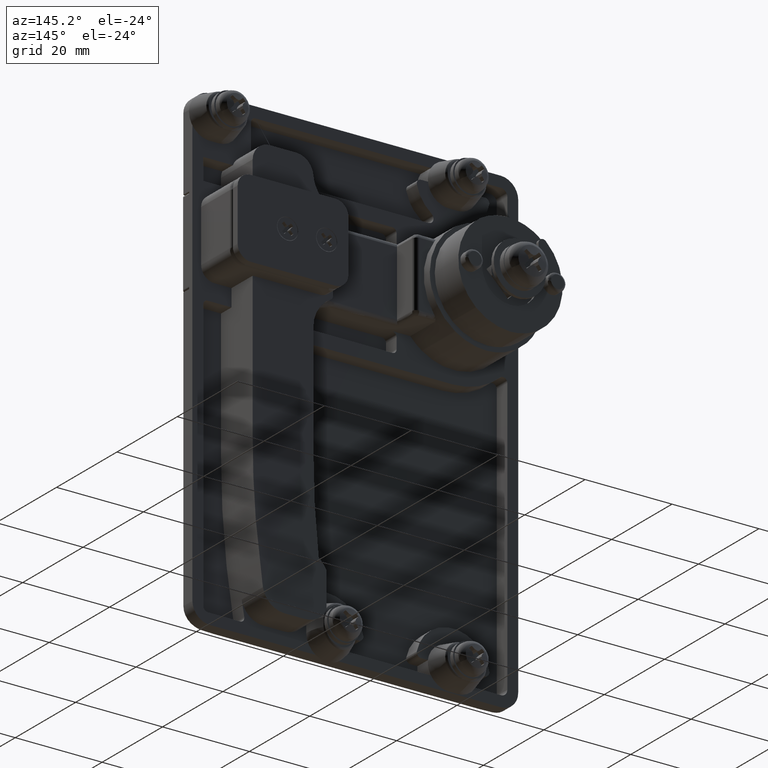
[diagram: clean part render]
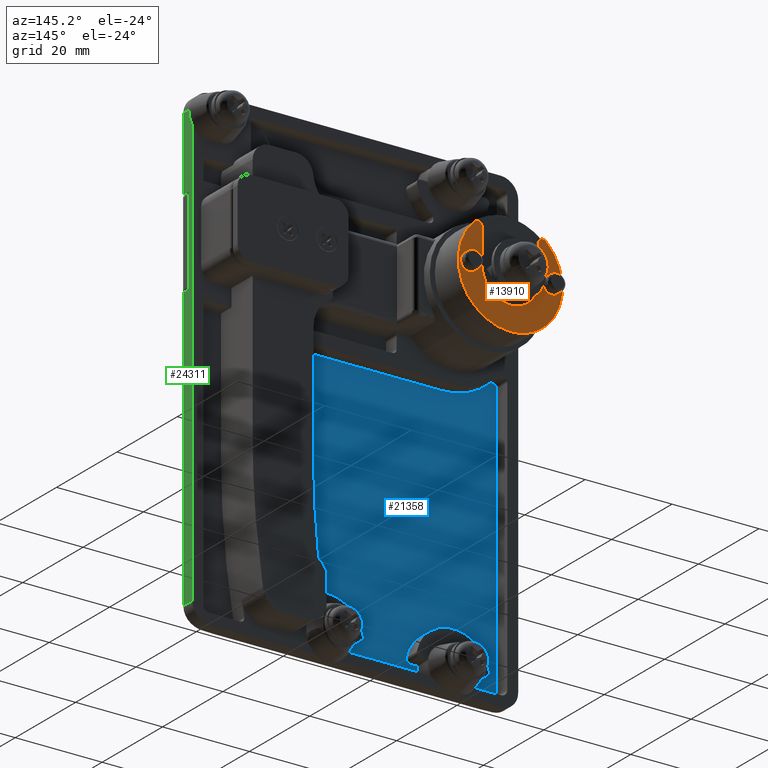
[diagram: same view with three faces highlighted in distinct colors, each labeled with its STEP entity id]
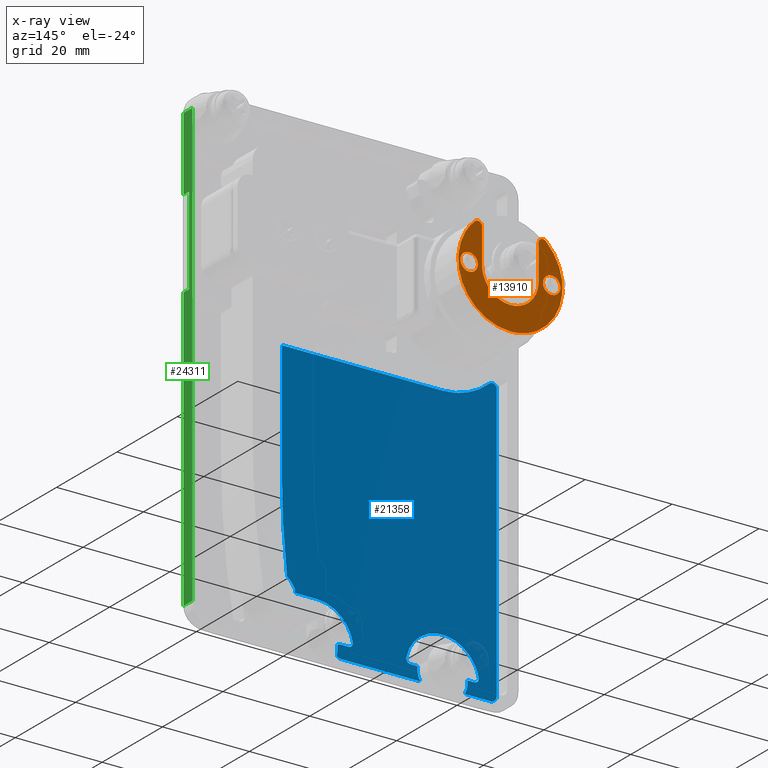
[diagram: x-ray of the same camera — body ghosted, the three highlighted faces saturated]
A machine part, auxiliary view with three faces highlighted in distinct colors.
The next image is the same camera in x-ray (body ghosted, the three faces saturated) — at least one of them is partly hidden behind the body in this view.
Their STEP definitions:

[orange] entity #13910 — the highlighted face is a freeform B-spline surface patch.
#12635=CARTESIAN_POINT('',(-10.818493579817989,-2.299999999999975,1.504339051015659));
#12636=VERTEX_POINT('',#12635);
#12637=CARTESIAN_POINT('',(-9.500554312781048,-2.299999999999970,2.0));
#12638=VERTEX_POINT('',#12637);
#12639=CARTESIAN_POINT('',(-10.818493579817989,-2.299999999999975,1.504339051015659));
#12640=CARTESIAN_POINT('',(-10.705765631374749,-2.299999999999973,1.603119157111389));
#12641=CARTESIAN_POINT('',(-10.433214148122930,-2.299999999999975,1.792433267581236));
#12642=CARTESIAN_POINT('',(-9.980189733858952,-2.299999999999972,1.962793381405086));
#12643=CARTESIAN_POINT('',(-9.650439410296194,-2.299999999999974,2.000019518660093));
#12644=CARTESIAN_POINT('',(-9.500554312781048,-2.299999999999970,2.0));
#12645=B_SPLINE_CURVE_WITH_KNOTS('',3,(#12639,#12640,#12641,#12642,#12643,#12644),.UNSPECIFIED.,.F.,.U.,(4,1,1,4),(0.000000056707181,0.449666796880399,0.989259729145574,1.438926469322637),.UNSPECIFIED.);
#12646=EDGE_CURVE('',#12636,#12638,#12645,.T.);
#12648=CARTESIAN_POINT('',(-7.500554312781053,-2.299999999999970,0.000000108937633));
#12649=VERTEX_POINT('',#12648);
#12650=CARTESIAN_POINT('',(-9.500554312781048,-2.299999999999970,2.0));
#12651=CARTESIAN_POINT('',(-9.255079323343674,-2.299999999999971,2.000222774157447));
#12652=CARTESIAN_POINT('',(-8.862558518375469,-2.299999999999971,1.926751729976570));
#12653=CARTESIAN_POINT('',(-8.380354650621021,-2.299999999999970,1.676514248519362));
#12654=CARTESIAN_POINT('',(-7.977174140410611,-2.299999999999969,1.337433117211962));
#12655=CARTESIAN_POINT('',(-7.608098377822787,-2.299999999999968,0.785175367080149));
#12656=CARTESIAN_POINT('',(-7.500211816818548,-2.299999999999970,0.278222425886379));
#12657=CARTESIAN_POINT('',(-7.500554312781053,-2.299999999999970,0.000000108937633));
#12658=B_SPLINE_CURVE_WITH_KNOTS('',3,(#12650,#12651,#12652,#12653,#12654,#12655,#12656,#12657),.UNSPECIFIED.,.F.,.U.,(4,1,1,1,1,4),(0.000000245896357,0.736327341935878,1.178132810275699,1.619889750789105,2.307162932575892,3.141671427290748),.UNSPECIFIED.);
#12659=EDGE_CURVE('',#12638,#12649,#12658,.T.);
#12661=CARTESIAN_POINT('',(-9.500554312781048,-2.299999999999970,-2.0));
#12662=VERTEX_POINT('',#12661);
#12663=CARTESIAN_POINT('',(-7.500554312781053,-2.299999999999970,0.000000108937633));
#12664=CARTESIAN_POINT('',(-7.500461850807058,-2.299999999999973,-0.196361105419364));
#12665=CARTESIAN_POINT('',(-7.549159642581868,-2.299999999999964,-0.523550965381519));
#12666=CARTESIAN_POINT('',(-7.731627358558628,-2.299999999999980,-0.964079420630833));
#12667=CARTESIAN_POINT('',(-7.955158103686912,-2.299999999999961,-1.289858571808496));
#12668=CARTESIAN_POINT('',(-8.272510821431444,-2.299999999999977,-1.599560458224136));
#12669=CARTESIAN_POINT('',(-8.764493318971612,-2.299999999999969,-1.902784737663015));
#12670=CARTESIAN_POINT('',(-9.222324465775891,-2.299999999999970,-2.000379172577453));
#12671=CARTESIAN_POINT('',(-9.500554312781048,-2.299999999999970,-2.0));
#12672=B_SPLINE_CURVE_WITH_KNOTS('',3,(#12663,#12664,#12665,#12666,#12667,#12668,#12669,#12670,#12671),.UNSPECIFIED.,.F.,.U.,(4,1,1,1,1,1,4),(0.000000245747300,0.589061720640697,0.981774423053799,1.423604630822817,1.767182731217914,2.307163022823409,3.141671550091920),.UNSPECIFIED.);
#12673=EDGE_CURVE('',#12649,#12662,#12672,.T.);
#12675=CARTESIAN_POINT('',(-10.927055108712970,-2.299999999999925,-1.401818671628610));
#12676=VERTEX_POINT('',#12675);
#12677=CARTESIAN_POINT('',(-9.500554312781048,-2.299999999999970,-2.0));
#12678=CARTESIAN_POINT('',(-9.781856032722562,-2.299999999999955,-2.000364826439899));
#12679=CARTESIAN_POINT('',(-10.310935458817051,-2.299999999999952,-1.886350095132684));
#12680=CARTESIAN_POINT('',(-10.753231855562740,-2.299999999999927,-1.578981344381065));
#12681=CARTESIAN_POINT('',(-10.927055108712970,-2.299999999999925,-1.401818671628610));
#12682=B_SPLINE_CURVE_WITH_KNOTS('',3,(#12677,#12678,#12679,#12680,#12681),.UNSPECIFIED.,.F.,.U.,(4,1,4),(0.000000071229806,0.843761089691676,1.588290201858233),.UNSPECIFIED.);
#12683=EDGE_CURVE('',#12662,#12676,#12682,.T.);
#12765=CARTESIAN_POINT('',(-11.500554312781050,-2.299999999999970,-0.000000108937643));
#12766=VERTEX_POINT('',#12765);
#12767=CARTESIAN_POINT('',(-11.500554312781050,-2.299999999999970,-0.000000108937643));
#12768=CARTESIAN_POINT('',(-11.500875983503841,-2.299999999999972,0.266117712118206));
#12769=CARTESIAN_POINT('',(-11.425098419838299,-2.299999999999972,0.638320335792178));
#12770=CARTESIAN_POINT('',(-11.162674530957981,-2.299999999999974,1.143651669996411));
#12771=CARTESIAN_POINT('',(-10.965303984675220,-2.299999999999975,1.375826229152342));
#12772=CARTESIAN_POINT('',(-10.818493579817989,-2.299999999999975,1.504339051015659));
#12773=B_SPLINE_CURVE_WITH_KNOTS('',3,(#12767,#12768,#12769,#12770,#12771,#12772),.UNSPECIFIED.,.F.,.U.,(4,1,1,4),(0.000000074612804,0.798177951670343,1.117425066221151,1.702746773010688),.UNSPECIFIED.);
#12774=EDGE_CURVE('',#12766,#12636,#12773,.T.);
#12797=CARTESIAN_POINT('',(-10.927055108712970,-2.299999999999925,-1.401818671628610));
#12798=CARTESIAN_POINT('',(-11.097327948772000,-2.299999999999934,-1.228813727616976));
#12799=CARTESIAN_POINT('',(-11.391903232784051,-2.299999999999944,-0.792586083703507));
#12800=CARTESIAN_POINT('',(-11.500906724522251,-2.299999999999958,-0.275118524503665));
#12801=CARTESIAN_POINT('',(-11.500554312781050,-2.299999999999970,-0.000000108937643));
#12802=B_SPLINE_CURVE_WITH_KNOTS('',3,(#12797,#12798,#12799,#12800,#12801),.UNSPECIFIED.,.F.,.U.,(4,1,4),(0.000000063773837,0.728164441117788,1.553381227700941),.UNSPECIFIED.);
#12803=EDGE_CURVE('',#12676,#12766,#12802,.T.);
#12830=CARTESIAN_POINT('',(8.181506420181956,-2.299999999999975,1.504339051015659));
#12831=VERTEX_POINT('',#12830);
#12832=CARTESIAN_POINT('',(9.499445687218900,-2.299999999999970,2.0));
#12833=VERTEX_POINT('',#12832);
#12834=CARTESIAN_POINT('',(8.181506420181956,-2.299999999999975,1.504339051015659));
#12835=CARTESIAN_POINT('',(8.328028460418029,-2.299999999999977,1.632780158176963));
#12836=CARTESIAN_POINT('',(8.735347447008751,-2.299999999999971,1.895709710850088));
#12837=CARTESIAN_POINT('',(9.214585989180828,-2.299999999999974,2.000396273106774));
#12838=CARTESIAN_POINT('',(9.499445687218900,-2.299999999999970,2.0));
#12839=B_SPLINE_CURVE_WITH_KNOTS('',3,(#12834,#12835,#12836,#12837,#12838),.UNSPECIFIED.,.F.,.U.,(4,1,4),(0.000000056706912,0.584567442942794,1.438926469322636),.UNSPECIFIED.);
#12840=EDGE_CURVE('',#12831,#12833,#12839,.T.);
#12842=CARTESIAN_POINT('',(11.499445687218900,-2.299999999999970,0.000000108937633));
#12843=VERTEX_POINT('',#12842);
#12844=CARTESIAN_POINT('',(9.499445687218900,-2.299999999999970,2.0));
#12845=CARTESIAN_POINT('',(9.695804270499160,-2.299999999999970,2.000090301670780));
#12846=CARTESIAN_POINT('',(10.023001093478490,-2.299999999999974,1.951398617661059));
#12847=CARTESIAN_POINT('',(10.493913802772870,-2.299999999999966,1.756357113853935));
#12848=CARTESIAN_POINT('',(10.868628724169410,-2.299999999999979,1.485547637025070));
#12849=CARTESIAN_POINT('',(11.154744867063840,-2.299999999999960,1.145386489678926));
#12850=CARTESIAN_POINT('',(11.416160271093050,-2.299999999999992,0.670626643697038));
#12851=CARTESIAN_POINT('',(11.499826213853609,-2.299999999999955,0.278242617393621));
#12852=CARTESIAN_POINT('',(11.499445687218900,-2.299999999999970,0.000000108937633));
#12853=B_SPLINE_CURVE_WITH_KNOTS('',3,(#12844,#12845,#12846,#12847,#12848,#12849,#12850,#12851,#12852),.UNSPECIFIED.,.F.,.U.,(4,1,1,1,1,1,4),(0.000000245895770,0.589061697714498,0.981774384746942,1.521781922535961,1.963538862765289,2.307162932575626,3.141671427290766),.UNSPECIFIED.);
#12854=EDGE_CURVE('',#12833,#12843,#12853,.T.);
#12856=CARTESIAN_POINT('',(9.499445687218900,-2.299999999999970,-2.0));
#12857=VERTEX_POINT('',#12856);
#12858=CARTESIAN_POINT('',(11.499445687218900,-2.299999999999970,0.000000108937633));
#12859=CARTESIAN_POINT('',(11.499675154519370,-2.299999999999972,-0.245479406622854));
#12860=CARTESIAN_POINT('',(11.426173714283131,-2.299999999999969,-0.637977670328339));
#12861=CARTESIAN_POINT('',(11.153267121526101,-2.299999999999973,-1.164097003250268));
#12862=CARTESIAN_POINT('',(10.831137278485430,-2.299999999999969,-1.519488228396833));
#12863=CARTESIAN_POINT('',(10.448314267806870,-2.299999999999974,-1.775208894262419));
#12864=CARTESIAN_POINT('',(10.023000165855519,-2.299999999999963,-1.951397606887421));
#12865=CARTESIAN_POINT('',(9.695805835838110,-2.299999999999975,-2.000091883376056));
#12866=CARTESIAN_POINT('',(9.499445687218900,-2.299999999999970,-2.0));
#12867=B_SPLINE_CURVE_WITH_KNOTS('',3,(#12858,#12859,#12860,#12861,#12862,#12863,#12864,#12865,#12866),.UNSPECIFIED.,.F.,.U.,(4,1,1,1,1,1,4),(0.000000245746148,0.736327370593048,1.178132856314925,1.767182731217486,2.159897372855219,2.552610075249607,3.141671550091922),.UNSPECIFIED.);
#12868=EDGE_CURVE('',#12843,#12857,#12867,.T.);
#12870=CARTESIAN_POINT('',(8.072944891286973,-2.299999999999925,-1.401818671628610));
#12871=VERTEX_POINT('',#12870);
#12872=CARTESIAN_POINT('',(9.499445687218900,-2.299999999999970,-2.0));
#12873=CARTESIAN_POINT('',(9.350545487855477,-2.299999999999968,-2.000023045483837));
#12874=CARTESIAN_POINT('',(9.036211937440530,-2.299999999999951,-1.964755260548353));
#12875=CARTESIAN_POINT('',(8.534579156143629,-2.299999999999942,-1.783133476859993));
#12876=CARTESIAN_POINT('',(8.223613839295821,-2.299999999999931,-1.555323065144908));
#12877=CARTESIAN_POINT('',(8.072944891286973,-2.299999999999925,-1.401818671628610));
#12878=B_SPLINE_CURVE_WITH_KNOTS('',3,(#12872,#12873,#12874,#12875,#12876,#12877),.UNSPECIFIED.,.F.,.U.,(4,1,1,4),(0.000000071229771,0.446708695173141,0.943034862235030,1.588290201858235),.UNSPECIFIED.);
#12879=EDGE_CURVE('',#12857,#12871,#12878,.T.);
#12961=CARTESIAN_POINT('',(7.499445687218904,-2.299999999999970,-0.000000108937643));
#12962=VERTEX_POINT('',#12961);
#12963=CARTESIAN_POINT('',(7.499445687218904,-2.299999999999970,-0.000000108937643));
#12964=CARTESIAN_POINT('',(7.499355399383262,-2.299999999999971,0.195112455679666));
#12965=CARTESIAN_POINT('',(7.549171973722453,-2.299999999999973,0.532042031831941));
#12966=CARTESIAN_POINT('',(7.770935523483621,-2.299999999999975,1.058002227077761));
#12967=CARTESIAN_POINT('',(8.007936695103535,-2.299999999999974,1.352506139830613));
#12968=CARTESIAN_POINT('',(8.181506420181956,-2.299999999999975,1.504339051015659));
#12969=B_SPLINE_CURVE_WITH_KNOTS('',3,(#12963,#12964,#12965,#12966,#12967,#12968),.UNSPECIFIED.,.F.,.U.,(4,1,1,4),(0.000000074612646,0.585321781405578,1.010988398203320,1.702746773010685),.UNSPECIFIED.);
#12970=EDGE_CURVE('',#12962,#12831,#12969,.T.);
#12993=CARTESIAN_POINT('',(8.072944891286973,-2.299999999999925,-1.401818671628610));
#12994=CARTESIAN_POINT('',(7.925420262028051,-2.299999999999928,-1.251854276855429));
#12995=CARTESIAN_POINT('',(7.706962874848906,-2.299999999999946,-0.944845744103216));
#12996=CARTESIAN_POINT('',(7.533162235266818,-2.299999999999946,-0.453047920461247));
#12997=CARTESIAN_POINT('',(7.499422124219243,-2.299999999999974,-0.145629439118842));
#12998=CARTESIAN_POINT('',(7.499445687218904,-2.299999999999970,-0.000000108937643));
#12999=B_SPLINE_CURVE_WITH_KNOTS('',3,(#12993,#12994,#12995,#12996,#12997,#12998),.UNSPECIFIED.,.F.,.U.,(4,1,1,4),(0.000000063774001,0.631072818897652,1.116490883003876,1.553381227700936),.UNSPECIFIED.);
#13000=EDGE_CURVE('',#12871,#12962,#12999,.T.);
#13031=CARTESIAN_POINT('',(-8.182372494599230,-2.299999999999970,8.778260148780651));
#13032=VERTEX_POINT('',#13031);
#13033=CARTESIAN_POINT('',(-3.452306312151571,-2.299999999995614,-11.492841604009080));
#13034=VERTEX_POINT('',#13033);
#13035=CARTESIAN_POINT('',(-8.182372494599230,-2.299999999999970,8.778260148780651));
#13036=CARTESIAN_POINT('',(-8.734374686832465,-2.299999999999649,8.263857157980731));
#13037=CARTESIAN_POINT('',(-9.806576169053676,-2.299999999998982,7.056570827146280));
#13038=CARTESIAN_POINT('',(-10.915113589630639,-2.299999999998086,5.144128662990858));
#13039=CARTESIAN_POINT('',(-11.548877578939480,-2.299999999997384,3.379411123542893));
#13040=CARTESIAN_POINT('',(-11.896640827698761,-2.299999999996833,1.807645470992848));
#13041=CARTESIAN_POINT('',(-12.027634695545760,-2.299999999996380,0.366188398004263));
#13042=CARTESIAN_POINT('',(-11.971232844490910,-2.299999999995947,-1.176865110960971));
#13043=CARTESIAN_POINT('',(-11.681339163211680,-2.299999999995540,-3.028304494297332));
#13044=CARTESIAN_POINT('',(-11.017427736616140,-2.299999999995174,-4.930077299886186));
#13045=CARTESIAN_POINT('',(-9.938104405052691,-2.299999999994950,-6.813167056022328));
#13046=CARTESIAN_POINT('',(-8.681093458969524,-2.299999999994978,-8.379811254394866));
#13047=CARTESIAN_POINT('',(-7.261744096964121,-2.299999999994947,-9.609990432436387));
#13048=CARTESIAN_POINT('',(-5.515352675052854,-2.299999999995217,-10.720798885392201));
#13049=CARTESIAN_POINT('',(-4.300697335974726,-2.299999999995419,-11.238218584615559));
#13050=CARTESIAN_POINT('',(-3.452306312151571,-2.299999999995614,-11.492841604009080));
#13051=B_SPLINE_CURVE_WITH_KNOTS('',3,(#13035,#13036,#13037,#13038,#13039,#13040,#13041,#13042,#13043,#13044,#13045,#13046,#13047,#13048,#13049,#13050),.UNSPECIFIED.,.F.,.U.,(4,1,1,1,1,1,1,1,1,1,1,1,1,4),(0.000000171161886,2.263597957470179,4.822484282328883,6.594011483436379,7.873453409182410,9.644977351006386,10.924422077678409,12.499150756889231,15.254795452074870,16.927883737072261,18.994685930451858,21.258303226900470,22.537739016038110,25.195022932087031),.UNSPECIFIED.);
#13052=EDGE_CURVE('',#13032,#13034,#13051,.T.);
#13121=CARTESIAN_POINT('',(7.953099886735921,-2.300000000005551,-8.985509717011333));
#13122=VERTEX_POINT('',#13121);
#13128=CARTESIAN_POINT('',(8.181263869037140,-2.299999999999970,8.778260148780531));
#13129=VERTEX_POINT('',#13128);
#13130=CARTESIAN_POINT('',(7.953099886735921,-2.300000000005551,-8.985509717011333));
#13131=CARTESIAN_POINT('',(8.772425402625258,-2.300000000005597,-8.260762284307406));
#13132=CARTESIAN_POINT('',(9.867977256964142,-2.300000000005581,-6.984022810560378));
#13133=CARTESIAN_POINT('',(10.921587206427800,-2.300000000005301,-5.060340108148520));
#13134=CARTESIAN_POINT('',(11.535545776596919,-2.300000000005020,-3.450946913925202));
#13135=CARTESIAN_POINT('',(11.982722290892781,-2.300000000004519,-1.463004278815676));
#13136=CARTESIAN_POINT('',(12.059105875293691,-2.300000000003800,0.894064206041468));
#13137=CARTESIAN_POINT('',(11.593385722277331,-2.300000000002846,3.417607549523477));
#13138=CARTESIAN_POINT('',(10.735443471918920,-2.300000000001897,5.499719460356800));
#13139=CARTESIAN_POINT('',(9.586059189043557,-2.300000000000925,7.306120675731304));
#13140=CARTESIAN_POINT('',(8.714755908793194,-2.300000000000305,8.281119745026345));
#13141=CARTESIAN_POINT('',(8.181263869037140,-2.299999999999970,8.778260148780531));
#13142=B_SPLINE_CURVE_WITH_KNOTS('',3,(#13130,#13131,#13132,#13133,#13134,#13135,#13136,#13137,#13138,#13139,#13140,#13141),.UNSPECIFIED.,.F.,.U.,(4,1,1,1,1,1,1,1,1,4),(0.000000027702001,3.281496783120730,5.000404288319800,6.563048950943195,8.438199520878053,11.094633604881990,13.594833297830270,16.095052791861029,17.813949554785999,20.001614615737029),.UNSPECIFIED.);
#13143=EDGE_CURVE('',#13122,#13129,#13142,.T.);
#13189=CARTESIAN_POINT('',(-0.000554315519913,-2.299999999999970,-12.0));
#13190=VERTEX_POINT('',#13189);
#13191=CARTESIAN_POINT('',(-3.452306312151571,-2.299999999995614,-11.492841604009080));
#13192=CARTESIAN_POINT('',(-2.334613130736421,-2.299999999997024,-11.828868381740760));
#13193=CARTESIAN_POINT('',(-1.167659968776507,-2.299999999998495,-12.000270196682360));
#13194=CARTESIAN_POINT('',(-0.000554315519913,-2.299999999999970,-12.0));
#13195=B_SPLINE_CURVE_WITH_KNOTS('',3,(#13191,#13192,#13193,#13194),.UNSPECIFIED.,.F.,.U.,(4,4),(3.758748E-009,3.501228719493706),.UNSPECIFIED.);
#13196=EDGE_CURVE('',#13034,#13190,#13195,.T.);
#13198=CARTESIAN_POINT('',(-0.000554315519913,-2.299999999999970,-12.0));
#13199=CARTESIAN_POINT('',(0.859873085411351,-2.300000000000570,-12.000151617138380));
#13200=CARTESIAN_POINT('',(2.263635939987682,-2.300000000001570,-11.848329020488860));
#13201=CARTESIAN_POINT('',(4.137723898362982,-2.300000000002863,-11.303237621841800));
#13202=CARTESIAN_POINT('',(6.003688334437421,-2.300000000004197,-10.472500122438490));
#13203=CARTESIAN_POINT('',(7.241146988387990,-2.300000000005039,-9.616020267760552));
#13204=CARTESIAN_POINT('',(7.953099886735921,-2.300000000005551,-8.985509717011333));
#13205=B_SPLINE_CURVE_WITH_KNOTS('',3,(#13198,#13199,#13200,#13201,#13202,#13203,#13204),.UNSPECIFIED.,.F.,.U.,(4,1,1,1,4),(0.000000019247254,2.581252070261000,4.211527657495351,5.841773656478701,8.694742040718042),.UNSPECIFIED.);
#13206=EDGE_CURVE('',#13190,#13122,#13205,.T.);
#13672=CARTESIAN_POINT('',(-6.500554312781050,-2.299999999999970,0.0));
#13673=VERTEX_POINT('',#13672);
#13674=CARTESIAN_POINT('',(-6.500554312781050,-2.299999999999970,8.046738469715589));
#13675=VERTEX_POINT('',#13674);
#13676=CARTESIAN_POINT('',(-6.500554312781050,-2.299999999999970,0.0));
#13677=CARTESIAN_POINT('',(-6.500554312781050,-2.299999999999970,8.046738469715589));
#13678=QUASI_UNIFORM_CURVE('',1,(#13676,#13677),.UNSPECIFIED.,.F.,.U.);
#13679=EDGE_CURVE('',#13673,#13675,#13678,.T.);
#13713=CARTESIAN_POINT('',(-6.500554312781050,-2.299999999999970,8.046738469715589));
#13714=CARTESIAN_POINT('',(-6.500515254835688,-2.299999999999968,8.143440230134990));
#13715=CARTESIAN_POINT('',(-6.528830303106350,-2.299999999999973,8.336838693452680));
#13716=CARTESIAN_POINT('',(-6.657522695300934,-2.299999999999967,8.613823011611377));
#13717=CARTESIAN_POINT('',(-6.864841932103936,-2.299999999999970,8.839262395396109));
#13718=CARTESIAN_POINT('',(-7.140628325822386,-2.299999999999970,8.996821332097854));
#13719=CARTESIAN_POINT('',(-7.476058275561044,-2.299999999999974,9.068742763421913));
#13720=CARTESIAN_POINT('',(-7.853908382595691,-2.299999999999977,9.010844578284887));
#13721=CARTESIAN_POINT('',(-8.085176353361767,-2.299999999999961,8.869035834081625));
#13722=CARTESIAN_POINT('',(-8.182372494599230,-2.299999999999970,8.778260148780651));
#13723=B_SPLINE_CURVE_WITH_KNOTS('',3,(#13713,#13714,#13715,#13716,#13717,#13718,#13719,#13720,#13721,#13722),.UNSPECIFIED.,.F.,.U.,(4,1,1,1,1,1,1,4),(0.000000531997220,0.290111975571525,0.580293425339313,0.906719667815711,1.196820697361817,1.523246273155662,1.922222144017489,2.321168704823736),.UNSPECIFIED.);
#13724=EDGE_CURVE('',#13675,#13032,#13723,.T.);
#13750=CARTESIAN_POINT('',(6.499445687218951,-2.299999999999970,8.046738469715489));
#13751=VERTEX_POINT('',#13750);
#13752=CARTESIAN_POINT('',(8.181263869037140,-2.299999999999970,8.778260148780531));
#13753=CARTESIAN_POINT('',(8.110552959179552,-2.299999999999969,8.844220235970132));
#13754=CARTESIAN_POINT('',(7.949767135974104,-2.299999999999972,8.955385113743748));
#13755=CARTESIAN_POINT('',(7.705863459408075,-2.299999999999971,9.034881694631622));
#13756=CARTESIAN_POINT('',(7.451705950226907,-2.299999999999972,9.055084590848564));
#13757=CARTESIAN_POINT('',(7.222457475056736,-2.299999999999972,9.018925937917661));
#13758=CARTESIAN_POINT('',(6.988297027421461,-2.299999999999967,8.917046565919439));
#13759=CARTESIAN_POINT('',(6.774188395708972,-2.299999999999980,8.755705605526986));
#13760=CARTESIAN_POINT('',(6.563485766979525,-2.299999999999966,8.469621053632084));
#13761=CARTESIAN_POINT('',(6.499151050001482,-2.299999999999972,8.203942650650125));
#13762=CARTESIAN_POINT('',(6.499445687218951,-2.299999999999970,8.046738469715489));
#13763=B_SPLINE_CURVE_WITH_KNOTS('',3,(#13752,#13753,#13754,#13755,#13756,#13757,#13758,#13759,#13760,#13761,#13762),.UNSPECIFIED.,.F.,.U.,(4,1,1,1,1,1,1,1,4),(0.000000531995493,0.290111975570033,0.580293425338014,0.761649140280370,1.051834371002226,1.269332286610016,1.523246273155071,1.849695722787061,2.321168704823772),.UNSPECIFIED.);
#13764=EDGE_CURVE('',#13129,#13751,#13763,.T.);
#13781=CARTESIAN_POINT('',(6.499445687218951,-2.299999999999970,0.0));
#13782=VERTEX_POINT('',#13781);
#13783=CARTESIAN_POINT('',(6.499445687218951,-2.299999999999970,8.046738469715489));
#13784=CARTESIAN_POINT('',(6.499445687218951,-2.299999999999970,0.0));
#13785=QUASI_UNIFORM_CURVE('',1,(#13783,#13784),.UNSPECIFIED.,.F.,.U.);
#13786=EDGE_CURVE('',#13751,#13782,#13785,.T.);
#13816=CARTESIAN_POINT('',(-0.000552546845625,-2.299999999999970,-6.499999999999760));
#13817=VERTEX_POINT('',#13816);
#13818=CARTESIAN_POINT('',(-0.000552546845625,-2.299999999999970,-6.499999999999760));
#13819=CARTESIAN_POINT('',(0.478051980786232,-2.299999999999970,-6.500077132030734));
#13820=CARTESIAN_POINT('',(1.382042106704216,-2.299999999999967,-6.399709434915311));
#13821=CARTESIAN_POINT('',(2.549010187548998,-2.299999999999976,-6.014173099054511));
#13822=CARTESIAN_POINT('',(3.654156151862590,-2.299999999999973,-5.423524966111273));
#13823=CARTESIAN_POINT('',(4.652441840373969,-2.299999999999960,-4.614489238363571));
#13824=CARTESIAN_POINT('',(5.431485463259618,-2.299999999999971,-3.628656299457155));
#13825=CARTESIAN_POINT('',(5.952426068606850,-2.299999999999976,-2.668173776959556));
#13826=CARTESIAN_POINT('',(6.372922335855729,-2.299999999999951,-1.515474881983430));
#13827=CARTESIAN_POINT('',(6.499663540733670,-2.300000000000002,-0.584978277332524));
#13828=CARTESIAN_POINT('',(6.499445687218951,-2.299999999999970,0.0));
#13829=B_SPLINE_CURVE_WITH_KNOTS('',3,(#13818,#13819,#13820,#13821,#13822,#13823,#13824,#13825,#13826,#13827,#13828),.UNSPECIFIED.,.F.,.U.,(4,1,1,1,1,1,1,1,4),(0.000000124237854,1.435803106723689,2.712097655289293,3.669321362744333,5.184845707082793,6.540921854046347,7.418373974952452,8.455371627719744,10.210239193378371),.UNSPECIFIED.);
#13830=EDGE_CURVE('',#13817,#13782,#13829,.T.);
#13832=CARTESIAN_POINT('',(-6.500554312781050,-2.299999999999970,0.0));
#13833=CARTESIAN_POINT('',(-6.500630058772515,-2.299999999999974,-0.452010737989854));
#13834=CARTESIAN_POINT('',(-6.419770151287472,-2.299999999999967,-1.223055234264244));
#13835=CARTESIAN_POINT('',(-6.070825388824697,-2.299999999999974,-2.426587040312546));
#13836=CARTESIAN_POINT('',(-5.541606663922623,-2.299999999999966,-3.477974575798667));
#13837=CARTESIAN_POINT('',(-4.769868972106746,-2.299999999999983,-4.466774804733396));
#13838=CARTESIAN_POINT('',(-3.974105211302940,-2.299999999999933,-5.179159803495567));
#13839=CARTESIAN_POINT('',(-3.054581135171665,-2.300000000000039,-5.769344004962882));
#13840=CARTESIAN_POINT('',(-1.781819671973014,-2.299999999999894,-6.324426207465282));
#13841=CARTESIAN_POINT('',(-0.691910873326675,-2.300000000000016,-6.500350518427197));
#13842=CARTESIAN_POINT('',(-0.000552546845625,-2.299999999999970,-6.499999999999760));
#13843=B_SPLINE_CURVE_WITH_KNOTS('',3,(#13832,#13833,#13834,#13835,#13836,#13837,#13838,#13839,#13840,#13841,#13842),.UNSPECIFIED.,.F.,.U.,(4,1,1,1,1,1,1,1,4),(0.000000123626245,1.356022812699930,2.313253495158014,3.749099630739317,4.865830724864165,6.062313876568250,6.939759919801547,8.136295777749144,10.210241184011650),.UNSPECIFIED.);
#13844=EDGE_CURVE('',#13673,#13817,#13843,.T.);
#13877=CARTESIAN_POINT('',(-13.196959514852940,-2.300000000000000,10.097758961368760));
#13878=CARTESIAN_POINT('',(13.197029185740270,-2.300000000000000,10.097758961368760));
#13879=CARTESIAN_POINT('',(-13.196959514852940,-2.300000000000000,-13.051272548221100));
#13880=CARTESIAN_POINT('',(13.197029185740270,-2.300000000000000,-13.051272548221100));
#13881=B_SPLINE_SURFACE_WITH_KNOTS('',1,1,((#13877,#13879),(#13878,#13880)),.UNSPECIFIED.,.F.,.F.,.U.,(2,2),(2,2),(0.0,26.393988700593209),(0.0,23.149031509589861),.UNSPECIFIED.);
#13882=ORIENTED_EDGE('',*,*,#13786,.F.);
#13883=ORIENTED_EDGE('',*,*,#13764,.F.);
#13884=ORIENTED_EDGE('',*,*,#13143,.F.);
#13885=ORIENTED_EDGE('',*,*,#13206,.F.);
#13886=ORIENTED_EDGE('',*,*,#13196,.F.);
#13887=ORIENTED_EDGE('',*,*,#13052,.F.);
#13888=ORIENTED_EDGE('',*,*,#13724,.F.);
#13889=ORIENTED_EDGE('',*,*,#13679,.F.);
#13890=ORIENTED_EDGE('',*,*,#13844,.T.);
#13891=ORIENTED_EDGE('',*,*,#13830,.T.);
#13892=EDGE_LOOP('',(#13882,#13883,#13884,#13885,#13886,#13887,#13888,#13889,#13890,#13891));
#13893=FACE_OUTER_BOUND('',#13892,.T.);
#13894=ORIENTED_EDGE('',*,*,#12854,.F.);
#13895=ORIENTED_EDGE('',*,*,#12840,.F.);
#13896=ORIENTED_EDGE('',*,*,#12970,.F.);
#13897=ORIENTED_EDGE('',*,*,#13000,.F.);
#13898=ORIENTED_EDGE('',*,*,#12879,.F.);
#13899=ORIENTED_EDGE('',*,*,#12868,.F.);
#13900=EDGE_LOOP('',(#13894,#13895,#13896,#13897,#13898,#13899));
#13901=FACE_BOUND('',#13900,.T.);
#13902=ORIENTED_EDGE('',*,*,#12659,.F.);
#13903=ORIENTED_EDGE('',*,*,#12646,.F.);
#13904=ORIENTED_EDGE('',*,*,#12774,.F.);
#13905=ORIENTED_EDGE('',*,*,#12803,.F.);
#13906=ORIENTED_EDGE('',*,*,#12683,.F.);
#13907=ORIENTED_EDGE('',*,*,#12673,.F.);
#13908=EDGE_LOOP('',(#13902,#13903,#13904,#13905,#13906,#13907));
#13909=FACE_BOUND('',#13908,.T.);
#13910=ADVANCED_FACE('',(#13893,#13901,#13909),#13881,.T.);

[blue] entity #21358 — the highlighted face is a freeform B-spline surface patch.
#19096=CARTESIAN_POINT('',(36.999445687218902,-24.800000000000001,-42.038580006373003));
#19097=VERTEX_POINT('',#19096);
#19103=CARTESIAN_POINT('',(36.999445687218902,-24.800000000000001,-16.0));
#19104=VERTEX_POINT('',#19103);
#19105=CARTESIAN_POINT('',(36.999445687218902,-24.800000000000001,-42.038580006373003));
#19106=CARTESIAN_POINT('',(36.999445687218902,-24.800000000000001,-16.0));
#19107=QUASI_UNIFORM_CURVE('',1,(#19105,#19106),.UNSPECIFIED.,.F.,.U.);
#19108=EDGE_CURVE('',#19097,#19104,#19107,.T.);
#20788=CARTESIAN_POINT('',(5.137637107195291,-24.800000000000001,-77.432252407570800));
#20789=VERTEX_POINT('',#20788);
#20795=CARTESIAN_POINT('',(5.499445687218900,-24.800000000000001,-77.500000000000000));
#20796=VERTEX_POINT('',#20795);
#20797=CARTESIAN_POINT('',(5.137637107195291,-24.800000000000001,-77.432252407570800));
#20798=CARTESIAN_POINT('',(5.252665681920970,-24.800000000000018,-77.476985077350818));
#20799=CARTESIAN_POINT('',(5.376038915440175,-24.799999999999990,-77.500044343185635));
#20800=CARTESIAN_POINT('',(5.499445687218900,-24.800000000000001,-77.500000000000000));
#20801=B_SPLINE_CURVE_WITH_KNOTS('',3,(#20797,#20798,#20799,#20800),.UNSPECIFIED.,.F.,.U.,(4,4),(0.000000026527895,0.370240174139206),.UNSPECIFIED.);
#20802=EDGE_CURVE('',#20789,#20796,#20801,.T.);
#20827=CARTESIAN_POINT('',(23.499445687218898,-24.800000000000001,-77.500000000000000));
#20828=VERTEX_POINT('',#20827);
#20829=CARTESIAN_POINT('',(5.499445687218900,-24.800000000000001,-77.500000000000000));
#20830=CARTESIAN_POINT('',(23.499445687218898,-24.800000000000001,-77.500000000000000));
#20831=QUASI_UNIFORM_CURVE('',1,(#20829,#20830),.UNSPECIFIED.,.F.,.U.);
#20832=EDGE_CURVE('',#20796,#20828,#20831,.T.);
#20864=CARTESIAN_POINT('',(24.320401321907251,-24.800000000000001,-77.070991984071185));
#20865=VERTEX_POINT('',#20864);
#20866=CARTESIAN_POINT('',(23.499445687218898,-24.800000000000001,-77.500000000000000));
#20867=CARTESIAN_POINT('',(23.649978714158639,-24.800000000000011,-77.500253162480107));
#20868=CARTESIAN_POINT('',(23.970746151211902,-24.799999999999940,-77.426063577226358));
#20869=CARTESIAN_POINT('',(24.223314739454491,-24.800000000000072,-77.211308631517241));
#20870=CARTESIAN_POINT('',(24.320401321907251,-24.800000000000001,-77.070991984071185));
#20871=B_SPLINE_CURVE_WITH_KNOTS('',3,(#20866,#20867,#20868,#20869,#20870),.UNSPECIFIED.,.F.,.U.,(4,1,4),(0.000000121056216,0.451483969353213,0.963118985102632),.UNSPECIFIED.);
#20872=EDGE_CURVE('',#20828,#20865,#20871,.T.);
#20917=CARTESIAN_POINT('',(-8.528554312781131,-24.800000000000001,-13.537843846048739));
#20918=VERTEX_POINT('',#20917);
#20924=CARTESIAN_POINT('',(-10.824039937530340,-24.800000000000001,-11.783562583646820));
#20925=VERTEX_POINT('',#20924);
#20926=CARTESIAN_POINT('',(-10.824039937530340,-24.800000000000001,-11.783562583646820));
#20927=CARTESIAN_POINT('',(-10.113871863805150,-24.799999999999979,-12.435958286277140));
#20928=CARTESIAN_POINT('',(-9.344524166804764,-24.800000000000029,-13.023890674233590));
#20929=CARTESIAN_POINT('',(-8.528554312781131,-24.800000000000001,-13.537843846048739));
#20930=B_SPLINE_CURVE_WITH_KNOTS('',3,(#20926,#20927,#20928,#20929),.UNSPECIFIED.,.F.,.U.,(4,4),(8.612937E-010,2.893030026464387),.UNSPECIFIED.);
#20931=EDGE_CURVE('',#20925,#20918,#20930,.T.);
#20957=CARTESIAN_POINT('',(-5.500554312781050,-24.800000000000001,-77.500000000000000));
#20958=VERTEX_POINT('',#20957);
#20964=CARTESIAN_POINT('',(-5.138745732757440,-24.800000000000001,-77.432252407570800));
#20965=VERTEX_POINT('',#20964);
#20966=CARTESIAN_POINT('',(-5.500554312781050,-24.800000000000001,-77.500000000000000));
#20967=CARTESIAN_POINT('',(-5.377148725149526,-24.800000000000018,-77.500044568118696));
#20968=CARTESIAN_POINT('',(-5.253773466906327,-24.800000000000001,-77.476984899487789));
#20969=CARTESIAN_POINT('',(-5.138745732757440,-24.800000000000001,-77.432252407570800));
#20970=B_SPLINE_CURVE_WITH_KNOTS('',3,(#20966,#20967,#20968,#20969),.UNSPECIFIED.,.F.,.U.,(4,4),(0.000000026527973,0.370240174139207),.UNSPECIFIED.);
#20971=EDGE_CURVE('',#20958,#20965,#20970,.T.);
#21002=CARTESIAN_POINT('',(-11.000554312781100,-24.800000000000001,-77.500000000000000));
#21003=VERTEX_POINT('',#21002);
#21009=CARTESIAN_POINT('',(-5.500554312781050,-24.800000000000001,-77.500000000000000));
#21010=CARTESIAN_POINT('',(-11.000554312781100,-24.800000000000001,-77.500000000000000));
#21011=QUASI_UNIFORM_CURVE('',1,(#21009,#21010),.UNSPECIFIED.,.F.,.U.);
#21012=EDGE_CURVE('',#20958,#21003,#21011,.T.);
#21034=CARTESIAN_POINT('',(-12.500554312781100,-24.800000000000001,-76.0));
#21035=VERTEX_POINT('',#21034);
#21041=CARTESIAN_POINT('',(-12.500554312781100,-24.800000000000001,-76.0));
#21042=CARTESIAN_POINT('',(-12.500582108261520,-24.800000000000001,-76.147251745536323));
#21043=CARTESIAN_POINT('',(-12.451486471376100,-24.800000000000001,-76.478644509908719));
#21044=CARTESIAN_POINT('',(-12.250324781841069,-24.800000000000029,-76.866349575641877));
#21045=CARTESIAN_POINT('',(-11.961108840699049,-24.799999999999990,-77.169927579384165));
#21046=CARTESIAN_POINT('',(-11.577094247148651,-24.800000000000029,-77.419932621736379));
#21047=CARTESIAN_POINT('',(-11.221507417122121,-24.800000000000100,-77.500312639073229));
#21048=CARTESIAN_POINT('',(-11.000554312781100,-24.800000000000001,-77.500000000000000));
#21049=B_SPLINE_CURVE_WITH_KNOTS('',3,(#21041,#21042,#21043,#21044,#21045,#21046,#21047,#21048),.UNSPECIFIED.,.F.,.U.,(4,1,1,1,1,4),(0.000000285949743,0.441792662942542,0.994075690967927,1.288575063719437,1.693553622323980,2.356253616557877),.UNSPECIFIED.);
#21050=EDGE_CURVE('',#21035,#21003,#21049,.T.);
#21079=CARTESIAN_POINT('',(-12.500554312781100,-24.800000000000001,-12.520000000000000));
#21080=VERTEX_POINT('',#21079);
#21086=CARTESIAN_POINT('',(-12.500554312781100,-24.800000000000001,-76.0));
#21087=CARTESIAN_POINT('',(-12.500554312781100,-24.800000000000001,-12.520000000000000));
#21088=QUASI_UNIFORM_CURVE('',1,(#21086,#21087),.UNSPECIFIED.,.F.,.U.);
#21089=EDGE_CURVE('',#21035,#21080,#21088,.T.);
#21114=CARTESIAN_POINT('',(-10.824039937530340,-24.800000000000001,-11.783562583646820));
#21115=CARTESIAN_POINT('',(-10.930427842062020,-24.800000000000001,-11.685576665259910));
#21116=CARTESIAN_POINT('',(-11.143936929028531,-24.800000000000001,-11.561984287296280));
#21117=CARTESIAN_POINT('',(-11.444278225441639,-24.799999999999990,-11.512201780751990));
#21118=CARTESIAN_POINT('',(-11.697753067940621,-24.799999999999979,-11.530082100682179));
#21119=CARTESIAN_POINT('',(-11.964890018635540,-24.800000000000040,-11.614236844654350));
#21120=CARTESIAN_POINT('',(-12.251835919372860,-24.800000000000061,-11.823675526016180));
#21121=CARTESIAN_POINT('',(-12.454299748745600,-24.799999999999851,-12.146461645883210));
#21122=CARTESIAN_POINT('',(-12.500621461323810,-24.800000000000139,-12.399492936607780));
#21123=CARTESIAN_POINT('',(-12.500554312781100,-24.800000000000001,-12.520000000000000));
#21124=B_SPLINE_CURVE_WITH_KNOTS('',3,(#21114,#21115,#21116,#21117,#21118,#21119,#21120,#21121,#21122,#21123),.UNSPECIFIED.,.F.,.U.,(4,1,1,1,1,1,1,4),(0.000000524521339,0.433837177114203,0.723092827681240,0.903871219310542,1.193064324031050,1.554636292420292,1.952359595506531,2.313883112475165),.UNSPECIFIED.);
#21125=EDGE_CURVE('',#20925,#21080,#21124,.T.);
#21145=CARTESIAN_POINT('',(-14.973097078566180,-24.800000000000001,-8.224740996554930));
#21146=CARTESIAN_POINT('',(39.472347372803320,-24.800000000000001,-8.224740996554930));
#21147=CARTESIAN_POINT('',(-14.973097078566180,-24.800000000000001,-80.795681620483890));
#21148=CARTESIAN_POINT('',(39.472347372803320,-24.800000000000001,-80.795681620483890));
#21149=B_SPLINE_SURFACE_WITH_KNOTS('',1,1,((#21145,#21147),(#21146,#21148)),.UNSPECIFIED.,.F.,.F.,.U.,(2,2),(2,2),(0.0,54.445444451369497),(0.0,72.570940623928962),.UNSPECIFIED.);
#21150=CARTESIAN_POINT('',(-0.000554312781105,-24.800000000000001,-16.0));
#21151=VERTEX_POINT('',#21150);
#21152=CARTESIAN_POINT('',(-8.528554312781131,-24.800000000000001,-13.537843846048739));
#21153=CARTESIAN_POINT('',(-7.577360141404240,-24.799999999999990,-14.137233180670350));
#21154=CARTESIAN_POINT('',(-5.590224743575293,-24.800000000000072,-15.113459136735051));
#21155=CARTESIAN_POINT('',(-2.670746540166864,-24.799999999999841,-15.859932940975790));
#21156=CARTESIAN_POINT('',(-0.796919776842110,-24.800000000000200,-16.000021390921930));
#21157=CARTESIAN_POINT('',(-0.000554312781105,-24.800000000000001,-16.0));
#21158=B_SPLINE_CURVE_WITH_KNOTS('',3,(#21152,#21153,#21154,#21155,#21156,#21157),.UNSPECIFIED.,.F.,.U.,(4,1,1,4),(0.000000012289140,3.372864563509631,6.605191824386020,8.994304724086286),.UNSPECIFIED.);
#21159=EDGE_CURVE('',#20918,#21151,#21158,.T.);
#21160=ORIENTED_EDGE('',*,*,#21159,.T.);
#21161=CARTESIAN_POINT('',(36.999445687218902,-24.800000000000001,-16.0));
#21162=CARTESIAN_POINT('',(-0.000554312781105,-24.800000000000001,-16.0));
#21163=QUASI_UNIFORM_CURVE('',1,(#21161,#21162),.UNSPECIFIED.,.F.,.U.);
#21164=EDGE_CURVE('',#19104,#21151,#21163,.T.);
#21165=ORIENTED_EDGE('',*,*,#21164,.F.);
#21166=ORIENTED_EDGE('',*,*,#19108,.F.);
#21167=CARTESIAN_POINT('',(35.785571973921300,-24.800000000000001,-63.536703487894407));
#21168=VERTEX_POINT('',#21167);
#21169=CARTESIAN_POINT('',(35.785571973921179,-24.800000000000001,-63.536703487894457));
#21170=CARTESIAN_POINT('',(37.025990594966444,-24.799999999999997,-52.823410769593565));
#21171=CARTESIAN_POINT('',(36.999445687218802,-24.800000000000001,-42.038580006373039));
#21179=(BOUNDED_CURVE()B_SPLINE_CURVE(2,(#21169,#21170,#21171),.UNSPECIFIED.,.F.,.U.)CURVE()GEOMETRIC_REPRESENTATION_ITEM()QUASI_UNIFORM_CURVE()RATIONAL_B_SPLINE_CURVE((1.0,0.998267921244335,1.0))REPRESENTATION_ITEM(''));
#21180=EDGE_CURVE('',#21168,#19097,#21179,.T.);
#21181=ORIENTED_EDGE('',*,*,#21180,.F.);
#21182=CARTESIAN_POINT('',(34.0,-24.800000000000001,-65.707502928999006));
#21183=VERTEX_POINT('',#21182);
#21184=CARTESIAN_POINT('',(35.785571973921300,-24.800000000000001,-63.536703487894407));
#21185=CARTESIAN_POINT('',(35.425096243563672,-24.799999999999962,-63.796136430159549));
#21186=CARTESIAN_POINT('',(34.723782490653193,-24.800000000000100,-64.443476344832305));
#21187=CARTESIAN_POINT('',(34.209642651651443,-24.799999999999962,-65.249892894054227));
#21188=CARTESIAN_POINT('',(34.0,-24.800000000000001,-65.707502928999006));
#21189=B_SPLINE_CURVE_WITH_KNOTS('',3,(#21184,#21185,#21186,#21187,#21188),.UNSPECIFIED.,.F.,.U.,(4,1,4),(0.000000017134668,1.332366739820488,2.842361864660390),.UNSPECIFIED.);
#21190=EDGE_CURVE('',#21168,#21183,#21189,.T.);
#21191=ORIENTED_EDGE('',*,*,#21190,.T.);
#21192=CARTESIAN_POINT('',(34.0,-24.800000000000001,-66.500000000000000));
#21193=VERTEX_POINT('',#21192);
#21194=CARTESIAN_POINT('',(34.0,-24.800000000000001,-66.500000000000000));
#21195=CARTESIAN_POINT('',(34.0,-24.800000000000001,-65.707502928999006));
#21196=QUASI_UNIFORM_CURVE('',1,(#21194,#21195),.UNSPECIFIED.,.F.,.U.);
#21197=EDGE_CURVE('',#21193,#21183,#21196,.T.);
#21198=ORIENTED_EDGE('',*,*,#21197,.F.);
#21199=CARTESIAN_POINT('',(28.999445687218952,-24.800000000000001,-66.500000000000000));
#21200=VERTEX_POINT('',#21199);
#21201=CARTESIAN_POINT('',(28.999445687218952,-24.800000000000001,-66.500000000000000));
#21202=CARTESIAN_POINT('',(34.0,-24.800000000000001,-66.500000000000000));
#21203=QUASI_UNIFORM_CURVE('',1,(#21201,#21202),.UNSPECIFIED.,.F.,.U.);
#21204=EDGE_CURVE('',#21200,#21193,#21203,.T.);
#21205=ORIENTED_EDGE('',*,*,#21204,.F.);
#21206=CARTESIAN_POINT('',(20.671415855193750,-24.800000000000001,-73.299996672311408));
#21207=VERTEX_POINT('',#21206);
#21208=CARTESIAN_POINT('',(28.999445687218952,-24.800000000000001,-66.500000000000000));
#21209=CARTESIAN_POINT('',(28.302244060506592,-24.800000000000040,-66.499828313381698));
#21210=CARTESIAN_POINT('',(27.150465350083639,-24.799999999999930,-66.642609835476790));
#21211=CARTESIAN_POINT('',(25.739015101207531,-24.800000000000100,-67.120339737092976));
#21212=CARTESIAN_POINT('',(24.599339818549300,-24.799999999999851,-67.692696204907762));
#21213=CARTESIAN_POINT('',(23.452091893592499,-24.800000000000072,-68.494170009475070));
#21214=CARTESIAN_POINT('',(22.259652554501621,-24.800000000000018,-69.714646507677173));
#21215=CARTESIAN_POINT('',(21.239296518343512,-24.800000000000011,-71.343173803489506));
#21216=CARTESIAN_POINT('',(20.810676458590830,-24.800000000000001,-72.616845991913536));
#21217=CARTESIAN_POINT('',(20.671415855193750,-24.800000000000001,-73.299996672311408));
#21218=B_SPLINE_CURVE_WITH_KNOTS('',3,(#21208,#21209,#21210,#21211,#21212,#21213,#21214,#21215,#21216,#21217),.UNSPECIFIED.,.F.,.U.,(4,1,1,1,1,1,1,4),(0.000000095462260,2.091557175255254,3.455646819887669,4.455967950520174,5.910921591848398,7.638760592418516,9.548486201399015,11.640043086498880),.UNSPECIFIED.);
#21219=EDGE_CURVE('',#21200,#21207,#21218,.T.);
#21220=ORIENTED_EDGE('',*,*,#21219,.T.);
#21221=CARTESIAN_POINT('',(21.651445687218949,-24.800000000000001,-74.500000000000000));
#21222=VERTEX_POINT('',#21221);
#21223=CARTESIAN_POINT('',(20.671415855193750,-24.800000000000001,-73.299996672311408));
#21224=CARTESIAN_POINT('',(20.641655355440591,-24.800000000000011,-73.444695093993772));
#21225=CARTESIAN_POINT('',(20.647556948016071,-24.800000000000018,-73.718953318491600));
#21226=CARTESIAN_POINT('',(20.808845988267020,-24.800000000000001,-74.078451922182097));
#21227=CARTESIAN_POINT('',(21.053430632711439,-24.799999999999962,-74.324805258736319));
#21228=CARTESIAN_POINT('',(21.346826547550499,-24.800000000000111,-74.468873974211974));
#21229=CARTESIAN_POINT('',(21.549900363320280,-24.799999999999802,-74.500069711025233));
#21230=CARTESIAN_POINT('',(21.651445687218949,-24.800000000000001,-74.500000000000000));
#21231=B_SPLINE_CURVE_WITH_KNOTS('',3,(#21223,#21224,#21225,#21226,#21227,#21228,#21229,#21230),.UNSPECIFIED.,.F.,.U.,(4,1,1,1,1,4),(0.000000393026241,0.443113216282198,0.803146904552432,1.163151450241248,1.467813954736629,1.772447414279692),.UNSPECIFIED.);
#21232=EDGE_CURVE('',#21207,#21222,#21231,.T.);
#21233=ORIENTED_EDGE('',*,*,#21232,.T.);
#21234=CARTESIAN_POINT('',(23.499445687218898,-24.800000000000001,-74.500000000000000));
#21235=VERTEX_POINT('',#21234);
#21236=CARTESIAN_POINT('',(23.499445687218898,-24.800000000000001,-74.500000000000000));
#21237=CARTESIAN_POINT('',(21.651445687218949,-24.800000000000001,-74.500000000000000));
#21238=QUASI_UNIFORM_CURVE('',1,(#21236,#21237),.UNSPECIFIED.,.F.,.U.);
#21239=EDGE_CURVE('',#21235,#21222,#21238,.T.);
#21240=ORIENTED_EDGE('',*,*,#21239,.F.);
#21241=CARTESIAN_POINT('',(24.199445687218901,-24.800000000000001,-74.785857157145813));
#21242=VERTEX_POINT('',#21241);
#21243=CARTESIAN_POINT('',(24.199445687218901,-24.800000000000001,-74.785857157145813));
#21244=CARTESIAN_POINT('',(24.130247337779100,-24.800000000000001,-74.717991039457715));
#21245=CARTESIAN_POINT('',(23.919157664718909,-24.800000000000011,-74.564085349305344));
#21246=CARTESIAN_POINT('',(23.661066506671169,-24.799999999999990,-74.499649897764613));
#21247=CARTESIAN_POINT('',(23.499445687218898,-24.800000000000001,-74.500000000000000));
#21248=B_SPLINE_CURVE_WITH_KNOTS('',3,(#21243,#21244,#21245,#21246,#21247),.UNSPECIFIED.,.F.,.U.,(4,1,4),(0.000000066100431,0.290789195231947,0.775416462000359),.UNSPECIFIED.);
#21249=EDGE_CURVE('',#21242,#21235,#21248,.T.);
#21250=ORIENTED_EDGE('',*,*,#21249,.F.);
#21251=CARTESIAN_POINT('',(24.199445687218901,-24.800000000000001,-75.978091040660601));
#21252=VERTEX_POINT('',#21251);
#21253=CARTESIAN_POINT('',(24.199445687218901,-24.800000000000001,-75.978091040660601));
#21254=CARTESIAN_POINT('',(24.199445687218901,-24.800000000000001,-74.785857157145813));
#21255=QUASI_UNIFORM_CURVE('',1,(#21253,#21254),.UNSPECIFIED.,.F.,.U.);
#21256=EDGE_CURVE('',#21252,#21242,#21255,.T.);
#21257=ORIENTED_EDGE('',*,*,#21256,.F.);
#21258=CARTESIAN_POINT('',(24.199445687218901,-24.800000000000001,-75.978091040660601));
#21259=CARTESIAN_POINT('',(24.197717508783320,-24.800000000000001,-76.345423000105100));
#21260=CARTESIAN_POINT('',(24.238402746612351,-24.800000000000029,-76.712927009138824));
#21261=CARTESIAN_POINT('',(24.320401321907251,-24.800000000000001,-77.070991984071185));
#21262=B_SPLINE_CURVE_WITH_KNOTS('',3,(#21258,#21259,#21260,#21261),.UNSPECIFIED.,.F.,.U.,(4,4),(2.940441E-009,1.102001846286935),.UNSPECIFIED.);
#21263=EDGE_CURVE('',#21252,#20865,#21262,.T.);
#21264=ORIENTED_EDGE('',*,*,#21263,.T.);
#21265=ORIENTED_EDGE('',*,*,#20872,.F.);
#21266=ORIENTED_EDGE('',*,*,#20832,.F.);
#21267=ORIENTED_EDGE('',*,*,#20802,.F.);
#21268=CARTESIAN_POINT('',(5.773383265623131,-24.800000000000001,-74.500000000000000));
#21269=VERTEX_POINT('',#21268);
#21270=CARTESIAN_POINT('',(5.137637107195291,-24.800000000000001,-77.432252407570800));
#21271=CARTESIAN_POINT('',(5.314869430444294,-24.799999999999930,-77.130837828602452));
#21272=CARTESIAN_POINT('',(5.563668447984827,-24.800000000000122,-76.576571199945448));
#21273=CARTESIAN_POINT('',(5.799654823440615,-24.799999999999841,-75.583844430336981));
#21274=CARTESIAN_POINT('',(5.816564682454454,-24.800000000000122,-74.910979992796186));
#21275=CARTESIAN_POINT('',(5.773383265623131,-24.800000000000001,-74.500000000000000));
#21276=B_SPLINE_CURVE_WITH_KNOTS('',3,(#21270,#21271,#21272,#21273,#21274,#21275),.UNSPECIFIED.,.F.,.U.,(4,1,1,4),(0.000000018453486,1.048979632156885,1.811853146072155,3.051556164173273),.UNSPECIFIED.);
#21277=EDGE_CURVE('',#20789,#21269,#21276,.T.);
#21278=ORIENTED_EDGE('',*,*,#21277,.T.);
#21279=CARTESIAN_POINT('',(7.348445687218891,-24.800000000000001,-74.500000000000000));
#21280=VERTEX_POINT('',#21279);
#21281=CARTESIAN_POINT('',(7.348445687218891,-24.800000000000001,-74.500000000000000));
#21282=CARTESIAN_POINT('',(5.773383265623131,-24.800000000000001,-74.500000000000000));
#21283=QUASI_UNIFORM_CURVE('',1,(#21281,#21282),.UNSPECIFIED.,.F.,.U.);
#21284=EDGE_CURVE('',#21280,#21269,#21283,.T.);
#21285=ORIENTED_EDGE('',*,*,#21284,.F.);
#21286=CARTESIAN_POINT('',(8.334531998425939,-24.800000000000001,-73.333765867373813));
#21287=VERTEX_POINT('',#21286);
#21288=CARTESIAN_POINT('',(7.348445687218891,-24.800000000000001,-74.500000000000000));
#21289=CARTESIAN_POINT('',(7.529629595615496,-24.800000000000040,-74.500539502132753));
#21290=CARTESIAN_POINT('',(7.773395713504008,-24.799999999999962,-74.431807122345617));
#21291=CARTESIAN_POINT('',(8.080209645409106,-24.800000000000050,-74.204291081033389));
#21292=CARTESIAN_POINT('',(8.255347045347191,-24.799999999999990,-73.966144522848381));
#21293=CARTESIAN_POINT('',(8.353345461153291,-24.799999999999990,-73.642615323084399));
#21294=CARTESIAN_POINT('',(8.352656220195756,-24.800000000000189,-73.440863546520902));
#21295=CARTESIAN_POINT('',(8.334531998425939,-24.800000000000001,-73.333765867373813));
#21296=B_SPLINE_CURVE_WITH_KNOTS('',3,(#21288,#21289,#21290,#21291,#21292,#21293,#21294,#21295),.UNSPECIFIED.,.F.,.U.,(4,1,1,1,1,4),(0.000000405996107,0.543088623688223,0.733163385974226,1.140468487552012,1.412017982949608,1.737859124519021),.UNSPECIFIED.);
#21297=EDGE_CURVE('',#21280,#21287,#21296,.T.);
#21298=ORIENTED_EDGE('',*,*,#21297,.T.);
#21299=CARTESIAN_POINT('',(-8.328584144806319,-24.800000000000001,-73.299996672311408));
#21300=VERTEX_POINT('',#21299);
#21301=CARTESIAN_POINT('',(8.334531998425939,-24.800000000000001,-73.333765867373813));
#21302=CARTESIAN_POINT('',(8.209686067839161,-24.799999999999979,-72.708607370962909));
#21303=CARTESIAN_POINT('',(7.902139944528503,-24.800000000000079,-71.748546699545201));
#21304=CARTESIAN_POINT('',(7.176646598469551,-24.799999999999809,-70.377188697317138));
#21305=CARTESIAN_POINT('',(6.201960058639652,-24.800000000000310,-69.087633378398266));
#21306=CARTESIAN_POINT('',(4.709546666829531,-24.799999999999720,-67.820593156449419));
#21307=CARTESIAN_POINT('',(2.980429495756539,-24.800000000000189,-66.969745407330720));
#21308=CARTESIAN_POINT('',(1.175600689042023,-24.799999999999709,-66.522128318294492));
#21309=CARTESIAN_POINT('',(-0.503304733429383,-24.800000000000502,-66.455728629648149));
#21310=CARTESIAN_POINT('',(-2.277685499612769,-24.799999999999400,-66.749486557185946));
#21311=CARTESIAN_POINT('',(-3.788667394974346,-24.800000000000839,-67.331345195921145));
#21312=CARTESIAN_POINT('',(-5.026820916208338,-24.799999999999169,-68.108618395718622));
#21313=CARTESIAN_POINT('',(-5.930301137863118,-24.800000000000441,-68.877567151240086));
#21314=CARTESIAN_POINT('',(-6.748164259748119,-24.799999999999820,-69.778541521381740));
#21315=CARTESIAN_POINT('',(-7.693486834726980,-24.800000000000161,-71.199046424489936));
#21316=CARTESIAN_POINT('',(-8.158947407268554,-24.799999999999940,-72.467049537679159));
#21317=CARTESIAN_POINT('',(-8.328584144806319,-24.800000000000001,-73.299996672311408));
#21318=B_SPLINE_CURVE_WITH_KNOTS('',3,(#21301,#21302,#21303,#21304,#21305,#21306,#21307,#21308,#21309,#21310,#21311,#21312,#21313,#21314,#21315,#21316,#21317),.UNSPECIFIED.,.F.,.U.,(4,1,1,1,1,1,1,1,1,1,1,1,1,1,4),(0.000000277724485,1.912480985358194,3.005366383669383,4.644704513266060,6.739407114730412,8.834123820780727,10.382379215041910,12.294814007290549,13.843057805481610,15.755595357875711,17.121711820311489,18.214604901690251,19.307494405950280,20.764678470266201,23.314677223629911),.UNSPECIFIED.);
#21319=EDGE_CURVE('',#21287,#21300,#21318,.T.);
#21320=ORIENTED_EDGE('',*,*,#21319,.T.);
#21321=CARTESIAN_POINT('',(-7.348554312781120,-24.800000000000001,-74.500000000000000));
#21322=VERTEX_POINT('',#21321);
#21323=CARTESIAN_POINT('',(-8.328584144806319,-24.800000000000001,-73.299996672311408));
#21324=CARTESIAN_POINT('',(-8.364077559522034,-24.800000000000001,-73.471864822580571));
#21325=CARTESIAN_POINT('',(-8.346355919345157,-24.800000000000040,-73.748228479040762));
#21326=CARTESIAN_POINT('',(-8.192024267559441,-24.799999999999979,-74.056680057597859));
#21327=CARTESIAN_POINT('',(-8.009914532342302,-24.799999999999962,-74.267570325898873));
#21328=CARTESIAN_POINT('',(-7.736182925489945,-24.800000000000018,-74.447468570875472));
#21329=CARTESIAN_POINT('',(-7.487041651249388,-24.800000000000079,-74.500204121309025));
#21330=CARTESIAN_POINT('',(-7.348554312781120,-24.800000000000001,-74.500000000000000));
#21331=B_SPLINE_CURVE_WITH_KNOTS('',3,(#21323,#21324,#21325,#21326,#21327,#21328,#21329,#21330),.UNSPECIFIED.,.F.,.U.,(4,1,1,1,1,4),(0.000000393017508,0.526205789363695,0.803146904547194,1.024674230932975,1.357033170404455,1.772447414280015),.UNSPECIFIED.);
#21332=EDGE_CURVE('',#21300,#21322,#21331,.T.);
#21333=ORIENTED_EDGE('',*,*,#21332,.T.);
#21334=CARTESIAN_POINT('',(-5.774491891185281,-24.800000000000001,-74.500000000000000));
#21335=VERTEX_POINT('',#21334);
#21336=CARTESIAN_POINT('',(-5.774491891185281,-24.800000000000001,-74.500000000000000));
#21337=CARTESIAN_POINT('',(-7.348554312781120,-24.800000000000001,-74.500000000000000));
#21338=QUASI_UNIFORM_CURVE('',1,(#21336,#21337),.UNSPECIFIED.,.F.,.U.);
#21339=EDGE_CURVE('',#21335,#21322,#21338,.T.);
#21340=ORIENTED_EDGE('',*,*,#21339,.F.);
#21341=CARTESIAN_POINT('',(-5.774491891185281,-24.800000000000001,-74.500000000000000));
#21342=CARTESIAN_POINT('',(-5.810971721195743,-24.800000000000001,-74.847751642072168));
#21343=CARTESIAN_POINT('',(-5.807586650522062,-24.800000000000018,-75.519242504579992));
#21344=CARTESIAN_POINT('',(-5.591004110415008,-24.799999999999930,-76.518238211900169));
#21345=CARTESIAN_POINT('',(-5.315963760736072,-24.800000000000090,-77.130833907355992));
#21346=CARTESIAN_POINT('',(-5.138745732757440,-24.800000000000001,-77.432252407570800));
#21347=B_SPLINE_CURVE_WITH_KNOTS('',3,(#21341,#21342,#21343,#21344,#21345,#21346),.UNSPECIFIED.,.F.,.U.,(4,1,1,4),(0.000000018455041,1.048979632158155,2.002576550469639,3.051556164173290),.UNSPECIFIED.);
#21348=EDGE_CURVE('',#21335,#20965,#21347,.T.);
#21349=ORIENTED_EDGE('',*,*,#21348,.T.);
#21350=ORIENTED_EDGE('',*,*,#20971,.F.);
#21351=ORIENTED_EDGE('',*,*,#21012,.T.);
#21352=ORIENTED_EDGE('',*,*,#21050,.F.);
#21353=ORIENTED_EDGE('',*,*,#21089,.T.);
#21354=ORIENTED_EDGE('',*,*,#21125,.F.);
#21355=ORIENTED_EDGE('',*,*,#20931,.T.);
#21356=EDGE_LOOP('',(#21160,#21165,#21166,#21181,#21191,#21198,#21205,#21220,#21233,#21240,#21250,#21257,#21264,#21265,#21266,#21267,#21278,#21285,#21298,#21320,#21333,#21340,#21349,#21350,#21351,#21352,#21353,#21354,#21355));
#21357=FACE_OUTER_BOUND('',#21356,.T.);
#21358=ADVANCED_FACE('',(#21357),#21149,.T.);

[green] entity #24311 — the highlighted face is a freeform B-spline surface patch.
#18570=CARTESIAN_POINT('',(59.999445687218902,-24.300000000000001,-11.100000000000000));
#18571=VERTEX_POINT('',#18570);
#18577=CARTESIAN_POINT('',(59.999445687218902,-22.399999999999999,-11.100000000000000));
#18578=VERTEX_POINT('',#18577);
#18579=CARTESIAN_POINT('',(59.999445687218902,-22.399999999999999,-11.100000000000000));
#18580=CARTESIAN_POINT('',(59.999445687218902,-24.300000000000001,-11.100000000000000));
#18581=QUASI_UNIFORM_CURVE('',1,(#18579,#18580),.UNSPECIFIED.,.F.,.U.);
#18582=EDGE_CURVE('',#18578,#18571,#18581,.T.);
#18611=CARTESIAN_POINT('',(59.999445687218902,-24.300000000000001,9.100000000000000));
#18612=VERTEX_POINT('',#18611);
#18634=CARTESIAN_POINT('',(59.999445687218902,-22.399999999999999,9.100000000000000));
#18635=VERTEX_POINT('',#18634);
#18641=CARTESIAN_POINT('',(59.999445687218902,-22.399999999999999,9.100000000000000));
#18642=CARTESIAN_POINT('',(59.999445687218902,-24.300000000000001,9.100000000000000));
#18643=QUASI_UNIFORM_CURVE('',1,(#18641,#18642),.UNSPECIFIED.,.F.,.U.);
#18644=EDGE_CURVE('',#18635,#18612,#18643,.T.);
#23194=CARTESIAN_POINT('',(59.999445687218902,-24.299605669156001,-76.0));
#23195=VERTEX_POINT('',#23194);
#23233=CARTESIAN_POINT('',(59.999445687218902,-24.300000000000001,-75.910781352598889));
#23234=VERTEX_POINT('',#23233);
#23235=CARTESIAN_POINT('',(59.999445687218902,-24.300000000000001,-75.910781352598889));
#23236=CARTESIAN_POINT('',(59.999445687218902,-24.299605669156001,-76.0));
#23237=QUASI_UNIFORM_CURVE('',1,(#23235,#23236),.UNSPECIFIED.,.F.,.U.);
#23238=EDGE_CURVE('',#23234,#23195,#23237,.T.);
#23279=CARTESIAN_POINT('',(59.999445687218902,-24.300000000000001,25.910781352598601));
#23280=VERTEX_POINT('',#23279);
#23286=CARTESIAN_POINT('',(59.999445687218902,-24.299605669156350,26.0));
#23287=VERTEX_POINT('',#23286);
#23288=CARTESIAN_POINT('',(59.999445687218902,-24.299605669156350,26.0));
#23289=CARTESIAN_POINT('',(59.999445687218902,-24.300000000000001,25.910781352598601));
#23290=QUASI_UNIFORM_CURVE('',1,(#23288,#23289),.UNSPECIFIED.,.F.,.U.);
#23291=EDGE_CURVE('',#23287,#23280,#23290,.T.);
#23637=CARTESIAN_POINT('',(59.999445687218902,-21.300000000000001,-76.0));
#23638=VERTEX_POINT('',#23637);
#23639=CARTESIAN_POINT('',(59.999445687218902,-21.300000000000001,-76.0));
#23640=CARTESIAN_POINT('',(59.999445687218902,-24.299605669156001,-76.0));
#23641=QUASI_UNIFORM_CURVE('',1,(#23639,#23640),.UNSPECIFIED.,.F.,.U.);
#23642=EDGE_CURVE('',#23638,#23195,#23641,.T.);
#23835=CARTESIAN_POINT('',(59.999445687218902,-21.300000000000001,26.0));
#23836=VERTEX_POINT('',#23835);
#23837=CARTESIAN_POINT('',(59.999445687218902,-21.300000000000001,26.0));
#23838=CARTESIAN_POINT('',(59.999445687218902,-24.299605669156350,26.0));
#23839=QUASI_UNIFORM_CURVE('',1,(#23837,#23838),.UNSPECIFIED.,.F.,.U.);
#23840=EDGE_CURVE('',#23836,#23287,#23839,.T.);
#24038=CARTESIAN_POINT('',(59.999445687218902,-21.300000000000001,-76.0));
#24039=CARTESIAN_POINT('',(59.999445687218902,-21.300000000000001,26.0));
#24040=QUASI_UNIFORM_CURVE('',1,(#24038,#24039),.UNSPECIFIED.,.F.,.U.);
#24041=EDGE_CURVE('',#23638,#23836,#24040,.T.);
#24205=CARTESIAN_POINT('',(59.999445687218902,-24.300000000000001,-75.910781352598889));
#24206=CARTESIAN_POINT('',(59.999445687218902,-24.300000000000001,-11.100000000000000));
#24207=QUASI_UNIFORM_CURVE('',1,(#24205,#24206),.UNSPECIFIED.,.F.,.U.);
#24208=EDGE_CURVE('',#23234,#18571,#24207,.T.);
#24219=CARTESIAN_POINT('',(59.999445687218902,-24.300000000000001,9.100000000000000));
#24220=CARTESIAN_POINT('',(59.999445687218902,-24.300000000000001,25.910781352598601));
#24221=QUASI_UNIFORM_CURVE('',1,(#24219,#24220),.UNSPECIFIED.,.F.,.U.);
#24222=EDGE_CURVE('',#18612,#23280,#24221,.T.);
#24290=CARTESIAN_POINT('',(59.999445687218902,-24.449849237807840,31.094899802304202));
#24291=CARTESIAN_POINT('',(59.999445687218902,-24.449849237807840,-81.094902538157399));
#24292=CARTESIAN_POINT('',(59.999445687218902,-21.150149286977200,31.094899802304202));
#24293=CARTESIAN_POINT('',(59.999445687218902,-21.150149286977200,-81.094902538157399));
#24294=B_SPLINE_SURFACE_WITH_KNOTS('',1,1,((#24290,#24292),(#24291,#24293)),.UNSPECIFIED.,.F.,.F.,.U.,(2,2),(2,2),(0.0,112.189802340461600),(0.0,3.299699950830640),.UNSPECIFIED.);
#24295=ORIENTED_EDGE('',*,*,#24222,.F.);
#24296=ORIENTED_EDGE('',*,*,#18644,.F.);
#24297=CARTESIAN_POINT('',(59.999445687218902,-22.399999999999999,9.100000000000000));
#24298=CARTESIAN_POINT('',(59.999445687218902,-22.399999999999999,-11.100000000000000));
#24299=QUASI_UNIFORM_CURVE('',1,(#24297,#24298),.UNSPECIFIED.,.F.,.U.);
#24300=EDGE_CURVE('',#18635,#18578,#24299,.T.);
#24301=ORIENTED_EDGE('',*,*,#24300,.T.);
#24302=ORIENTED_EDGE('',*,*,#18582,.T.);
#24303=ORIENTED_EDGE('',*,*,#24208,.F.);
#24304=ORIENTED_EDGE('',*,*,#23238,.T.);
#24305=ORIENTED_EDGE('',*,*,#23642,.F.);
#24306=ORIENTED_EDGE('',*,*,#24041,.T.);
#24307=ORIENTED_EDGE('',*,*,#23840,.T.);
#24308=ORIENTED_EDGE('',*,*,#23291,.T.);
#24309=EDGE_LOOP('',(#24295,#24296,#24301,#24302,#24303,#24304,#24305,#24306,#24307,#24308));
#24310=FACE_OUTER_BOUND('',#24309,.T.);
#24311=ADVANCED_FACE('',(#24310),#24294,.T.);